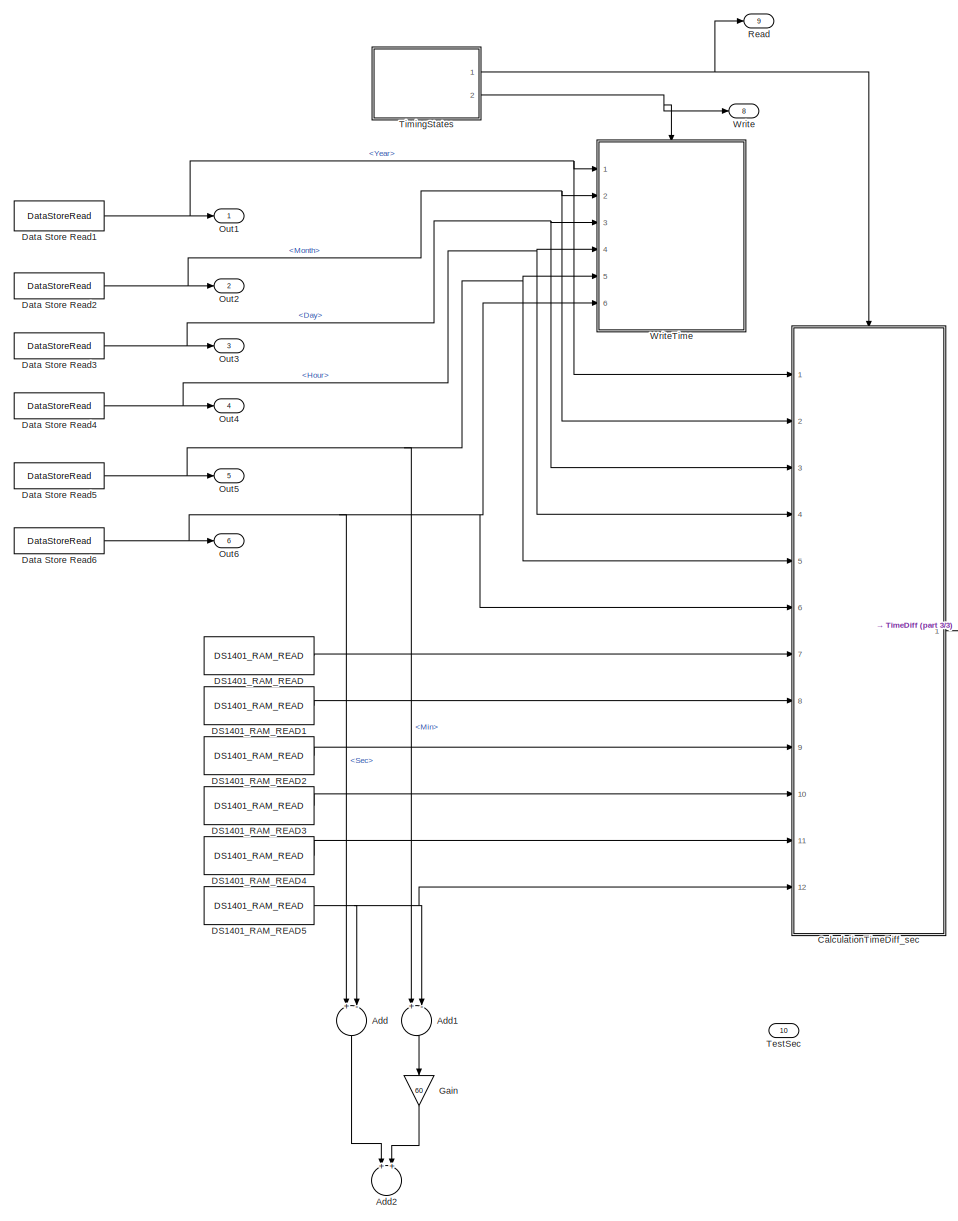
[diagram: root canvas - part 1/3, center side, full height]
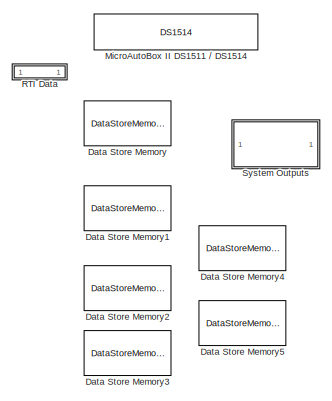
[diagram: root canvas - part 2/3, top left region]
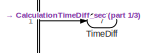
[diagram: root canvas - part 3/3, middle right region]
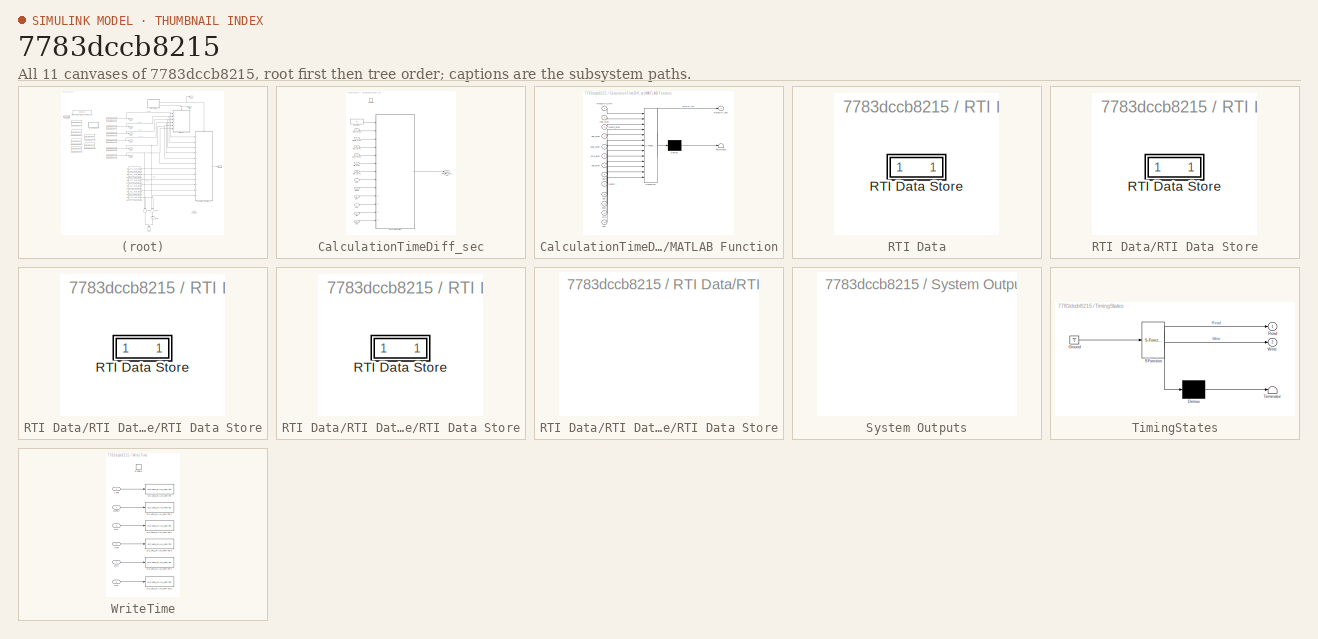
[diagram: thumbnail index - all 11 canvases of the model, root first then tree order]
MODEL slx_7783dccb8215
KIND model
CONFIG AbsTol = auto
CONFIG FixedStep = 0.0001
CONFIG MaxStep = auto
CONFIG MinStep = auto
CONFIG PostLoadFcn = , if any(exist('dsrtsu_mdlpostloadfcn', 'file') == [2, 3, 6]), try dsrtsu_mdlpostloadfcn('Execute', bdroot); catch fprintf('Error in PostLoadFcn (dsrtsu_mdlpostloadfcn) for model "%s":\n %s\n', bdroot, lasterr); end, end, \n
CONFIG RelTol = 1e-3
CONFIG SampleTimeConstraint = Unconstrained
CONFIG Solver = ode1
CONFIG SolverMode = SingleTasking
CONFIG SolverName = ode1
CONFIG StartTime = 0.0
CONFIG StopTime = Inf
BLOCK [Sum] Add
  InputSameDT = off
  Inputs = +-
  OutDataTypeStr = Inherit: Inherit via internal rule
  Ports = [2, 1]
  SaturateOnIntegerOverflow = off
BLOCK [Sum] Add1
  InputSameDT = off
  Inputs = +-
  OutDataTypeStr = Inherit: Inherit via internal rule
  Ports = [2, 1]
  SaturateOnIntegerOverflow = off
BLOCK [Sum] Add2
  InputSameDT = off
  OutDataTypeStr = Inherit: Inherit via internal rule
  Ports = [2, 1]
  SaturateOnIntegerOverflow = off
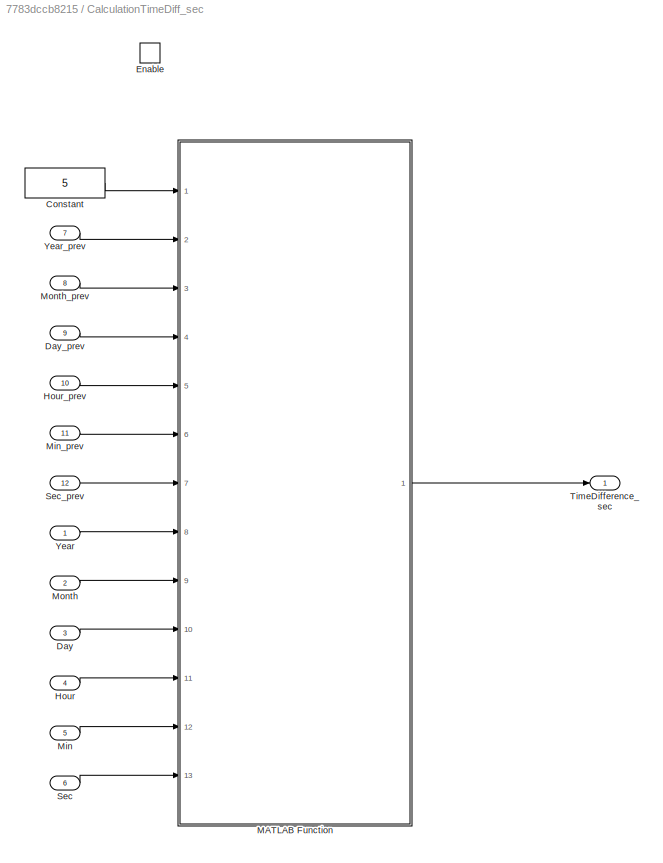
BLOCK [SubSystem] CalculationTimeDiff_sec
  Ports = [12, 1, 1]
  RequestExecContextInheritance = off
  TreatAsAtomicUnit = on
BLOCK [Constant] CalculationTimeDiff_sec/Constant
  OutDataTypeStr = int8
  Value = 5
BLOCK [Inport] CalculationTimeDiff_sec/Day
  IconDisplay = Port number
  Port = 3
BLOCK [Inport] CalculationTimeDiff_sec/Day_prev
  IconDisplay = Port number
  Port = 9
BLOCK [EnablePort] CalculationTimeDiff_sec/Enable
  Ports = []
BLOCK [Inport] CalculationTimeDiff_sec/Hour
  IconDisplay = Port number
  Port = 4
BLOCK [Inport] CalculationTimeDiff_sec/Hour_prev
  IconDisplay = Port number
  Port = 10
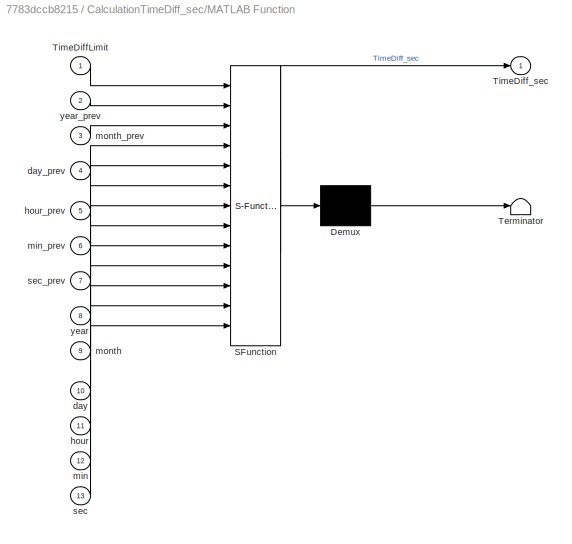
BLOCK [SubSystem] CalculationTimeDiff_sec/MATLAB Function
  ErrorFcn = Stateflow.Translate.translate
  PermitHierarchicalResolution = ExplicitOnly
  Ports = [13, 1]
  RequestExecContextInheritance = off
  SFBlockType = MATLAB Function
  TreatAsAtomicUnit = on
BLOCK [Demux] CalculationTimeDiff_sec/MATLAB Function/ Demux 
  Outputs = 1
  Ports = [1, 1]
BLOCK [S-Function] CalculationTimeDiff_sec/MATLAB Function/ SFunction 
  EnableBusSupport = on
  FunctionName = sf_sfun
  PortCounts = [13 2]
  Ports = [13, 2]
  Tag = Stateflow S-Function Time_example 20
BLOCK [Terminator] CalculationTimeDiff_sec/MATLAB Function/ Terminator 
BLOCK [Inport] CalculationTimeDiff_sec/MATLAB Function/TimeDiffLimit
  IconDisplay = Port number
BLOCK [Outport] CalculationTimeDiff_sec/MATLAB Function/TimeDiff_sec
  IconDisplay = Port number
BLOCK [Inport] CalculationTimeDiff_sec/MATLAB Function/day
  IconDisplay = Port number
  Port = 10
BLOCK [Inport] CalculationTimeDiff_sec/MATLAB Function/day_prev
  IconDisplay = Port number
  Port = 4
BLOCK [Inport] CalculationTimeDiff_sec/MATLAB Function/hour
  IconDisplay = Port number
  Port = 11
BLOCK [Inport] CalculationTimeDiff_sec/MATLAB Function/hour_prev
  IconDisplay = Port number
  Port = 5
BLOCK [Inport] CalculationTimeDiff_sec/MATLAB Function/min
  IconDisplay = Port number
  Port = 12
BLOCK [Inport] CalculationTimeDiff_sec/MATLAB Function/min_prev
  IconDisplay = Port number
  Port = 6
BLOCK [Inport] CalculationTimeDiff_sec/MATLAB Function/month
  IconDisplay = Port number
  Port = 9
BLOCK [Inport] CalculationTimeDiff_sec/MATLAB Function/month_prev
  IconDisplay = Port number
  Port = 3
BLOCK [Inport] CalculationTimeDiff_sec/MATLAB Function/sec
  IconDisplay = Port number
  Port = 13
BLOCK [Inport] CalculationTimeDiff_sec/MATLAB Function/sec_prev
  IconDisplay = Port number
  Port = 7
BLOCK [Inport] CalculationTimeDiff_sec/MATLAB Function/year
  IconDisplay = Port number
  Port = 8
BLOCK [Inport] CalculationTimeDiff_sec/MATLAB Function/year_prev
  IconDisplay = Port number
  Port = 2
BLOCK [Inport] CalculationTimeDiff_sec/Min
  IconDisplay = Port number
  Port = 5
BLOCK [Inport] CalculationTimeDiff_sec/Min_prev
  IconDisplay = Port number
  Port = 11
BLOCK [Inport] CalculationTimeDiff_sec/Month
  IconDisplay = Port number
  Port = 2
BLOCK [Inport] CalculationTimeDiff_sec/Month_prev
  IconDisplay = Port number
  Port = 8
BLOCK [Inport] CalculationTimeDiff_sec/Sec
  IconDisplay = Port number
  Port = 6
BLOCK [Inport] CalculationTimeDiff_sec/Sec_prev
  IconDisplay = Port number
  Port = 12
BLOCK [Outport] CalculationTimeDiff_sec/TimeDifference_sec
  IconDisplay = Port number
BLOCK [Inport] CalculationTimeDiff_sec/Year
  IconDisplay = Port number
BLOCK [Inport] CalculationTimeDiff_sec/Year_prev
  IconDisplay = Port number
  Port = 7
BLOCK [Reference] DS1401_RAM_READ  REF=rti1401lib_I_base/DS1401_RAM_READ
  Address = 0
  DSProperties = struct('RTI',struct('Version',uint32(1),'BlockType',struct('isSLSource',uint8(1),'isSLSink',uint8(0),'isHWSource',uint8(0),'isHWSink',uint8(1),'isSetup',uint8(0),'isInline',uint8(1),'isNonInline',uint8(1),'isInterrupt',uint8(0),'isChannelwise',uint8(0)),'IOBoardType',{{'DS1401','BASE'}},'UnitType','RAM','Identifier','RAMREAD','DialogType','SL','BlockSet','NONE','SlaveProcessor','NONE'))  <repeated x6 — deduplicated; at blocks: DS1401_RAM_READ, DS1401_RAM_READ1, DS1401_RAM_READ2, DS1401_RAM_READ3, DS1401_RAM_READ4, DS1401_RAM_READ5>
  DataType = Int8
  Ports = [0, 1]
  RTIBlockInterface = struct('OutputPortsActive',1,'BlockDisplay',{{['From\nnon-volatile RAM'],'center'}},'IconTransparency','off','InitLevel',1,'BlockName',struct('Token',{{'DS1401_RAM_READ'}}),'MaskDescription',['Provide read access from non-volatile Real-Time-Clock user RAM.'])  <repeated x6 — deduplicated; at blocks: DS1401_RAM_READ, DS1401_RAM_READ1, DS1401_RAM_READ2, DS1401_RAM_READ3, DS1401_RAM_READ4, DS1401_RAM_READ5>
  RTIBlockParaDefault = struct('DataType',8,'Address',0,'SampleTime',-1)
  RTIBlockParameters = struct('DataType',{{1,'ON',[1 8]}},'Address',{{0,'ON','DataType',[0 1 2 3 4 5 6 7 8 9 10 11 12 13 14 15;0 1 2 3 4 5 6 7 8 9 10 11 12 13 14 15;0 0 2 2 4 4 6 6 8 8 10 10 12 12 14 14;0 0 2 2 4 4 6 6 8 8 10 10 12 12 14 14;0 0 0 0 4 4 4 4 8 8 8 8 12 12 12 12;0 0 0 0 4 4 4 4 8 8 8 8 12 12 12 12;0 0 0 0 4 4 4 4 8 8 8 8 12 12 12 12;0 0 0 0 0 0 0 0 8 8 8 8 8 8 8 8]}},'SampleTime',{{-1,'OFF',[]}})
  RTISFcnParameters = struct('DataType','double','Address','double','SampleTime','double')
  Reserved1 = []
  Reserved2 = []
  Reserved3 = []
  Reserved4 = []
  SampleTime = -1
  SourceBlock = rti1401lib_I_base/DS1401_RAM_READ
  SourceType = RTI
BLOCK [Reference] DS1401_RAM_READ1  REF=rti1401lib_I_base/DS1401_RAM_READ
  Address = 1
  DataType = Int8
  Ports = [0, 1]
  RTIBlockParaDefault = struct('DataType',8,'Address',0,'SampleTime',-1)
  RTIBlockParameters = struct('DataType',{{1,'ON',[1 8]}},'Address',{{1,'ON','DataType',[0 1 2 3 4 5 6 7 8 9 10 11 12 13 14 15;0 1 2 3 4 5 6 7 8 9 10 11 12 13 14 15;0 0 2 2 4 4 6 6 8 8 10 10 12 12 14 14;0 0 2 2 4 4 6 6 8 8 10 10 12 12 14 14;0 0 0 0 4 4 4 4 8 8 8 8 12 12 12 12;0 0 0 0 4 4 4 4 8 8 8 8 12 12 12 12;0 0 0 0 4 4 4 4 8 8 8 8 12 12 12 12;0 0 0 0 0 0 0 0 8 8 8 8 8 8 8 8]}},'SampleTime',{{-1,'OFF',[]}})
  RTISFcnParameters = struct('DataType','double','Address','double','SampleTime','double')
  Reserved1 = []
  Reserved2 = []
  Reserved3 = []
  Reserved4 = []
  SampleTime = -1
  SourceBlock = rti1401lib_I_base/DS1401_RAM_READ
  SourceType = RTI
BLOCK [Reference] DS1401_RAM_READ2  REF=rti1401lib_I_base/DS1401_RAM_READ
  Address = 2
  DataType = Int8
  Ports = [0, 1]
  RTIBlockParaDefault = struct('DataType',8,'Address',0,'SampleTime',-1)
  RTIBlockParameters = struct('DataType',{{1,'ON',[1 8]}},'Address',{{2,'ON','DataType',[0 1 2 3 4 5 6 7 8 9 10 11 12 13 14 15;0 1 2 3 4 5 6 7 8 9 10 11 12 13 14 15;0 0 2 2 4 4 6 6 8 8 10 10 12 12 14 14;0 0 2 2 4 4 6 6 8 8 10 10 12 12 14 14;0 0 0 0 4 4 4 4 8 8 8 8 12 12 12 12;0 0 0 0 4 4 4 4 8 8 8 8 12 12 12 12;0 0 0 0 4 4 4 4 8 8 8 8 12 12 12 12;0 0 0 0 0 0 0 0 8 8 8 8 8 8 8 8]}},'SampleTime',{{-1,'OFF',[]}})
  RTISFcnParameters = struct('DataType','double','Address','double','SampleTime','double')
  Reserved1 = []
  Reserved2 = []
  Reserved3 = []
  Reserved4 = []
  SampleTime = -1
  SourceBlock = rti1401lib_I_base/DS1401_RAM_READ
  SourceType = RTI
BLOCK [Reference] DS1401_RAM_READ3  REF=rti1401lib_I_base/DS1401_RAM_READ
  Address = 3
  DataType = Int8
  Ports = [0, 1]
  RTIBlockParaDefault = struct('DataType',8,'Address',0,'SampleTime',-1)
  RTIBlockParameters = struct('DataType',{{1,'ON',[1 8]}},'Address',{{3,'ON','DataType',[0 1 2 3 4 5 6 7 8 9 10 11 12 13 14 15;0 1 2 3 4 5 6 7 8 9 10 11 12 13 14 15;0 0 2 2 4 4 6 6 8 8 10 10 12 12 14 14;0 0 2 2 4 4 6 6 8 8 10 10 12 12 14 14;0 0 0 0 4 4 4 4 8 8 8 8 12 12 12 12;0 0 0 0 4 4 4 4 8 8 8 8 12 12 12 12;0 0 0 0 4 4 4 4 8 8 8 8 12 12 12 12;0 0 0 0 0 0 0 0 8 8 8 8 8 8 8 8]}},'SampleTime',{{-1,'OFF',[]}})
  RTISFcnParameters = struct('DataType','double','Address','double','SampleTime','double')
  Reserved1 = []
  Reserved2 = []
  Reserved3 = []
  Reserved4 = []
  SampleTime = -1
  SourceBlock = rti1401lib_I_base/DS1401_RAM_READ
  SourceType = RTI
BLOCK [Reference] DS1401_RAM_READ4  REF=rti1401lib_I_base/DS1401_RAM_READ
  Address = 4
  DataType = Int8
  Ports = [0, 1]
  RTIBlockParaDefault = struct('DataType',8,'Address',0,'SampleTime',-1)
  RTIBlockParameters = struct('DataType',{{1,'ON',[1 8]}},'Address',{{4,'ON','DataType',[0 1 2 3 4 5 6 7 8 9 10 11 12 13 14 15;0 1 2 3 4 5 6 7 8 9 10 11 12 13 14 15;0 0 2 2 4 4 6 6 8 8 10 10 12 12 14 14;0 0 2 2 4 4 6 6 8 8 10 10 12 12 14 14;0 0 0 0 4 4 4 4 8 8 8 8 12 12 12 12;0 0 0 0 4 4 4 4 8 8 8 8 12 12 12 12;0 0 0 0 4 4 4 4 8 8 8 8 12 12 12 12;0 0 0 0 0 0 0 0 8 8 8 8 8 8 8 8]}},'SampleTime',{{-1,'OFF',[]}})
  RTISFcnParameters = struct('DataType','double','Address','double','SampleTime','double')
  Reserved1 = []
  Reserved2 = []
  Reserved3 = []
  Reserved4 = []
  SampleTime = -1
  SourceBlock = rti1401lib_I_base/DS1401_RAM_READ
  SourceType = RTI
BLOCK [Reference] DS1401_RAM_READ5  REF=rti1401lib_I_base/DS1401_RAM_READ
  Address = 5
  DataType = Int8
  Ports = [0, 1]
  RTIBlockParaDefault = struct('DataType',8,'Address',0,'SampleTime',-1)
  RTIBlockParameters = struct('DataType',{{1,'ON',[1 8]}},'Address',{{5,'ON','DataType',[0 1 2 3 4 5 6 7 8 9 10 11 12 13 14 15;0 1 2 3 4 5 6 7 8 9 10 11 12 13 14 15;0 0 2 2 4 4 6 6 8 8 10 10 12 12 14 14;0 0 2 2 4 4 6 6 8 8 10 10 12 12 14 14;0 0 0 0 4 4 4 4 8 8 8 8 12 12 12 12;0 0 0 0 4 4 4 4 8 8 8 8 12 12 12 12;0 0 0 0 4 4 4 4 8 8 8 8 12 12 12 12;0 0 0 0 0 0 0 0 8 8 8 8 8 8 8 8]}},'SampleTime',{{-1,'OFF',[]}})
  RTISFcnParameters = struct('DataType','double','Address','double','SampleTime','double')
  Reserved1 = []
  Reserved2 = []
  Reserved3 = []
  Reserved4 = []
  SampleTime = -1
  SourceBlock = rti1401lib_I_base/DS1401_RAM_READ
  SourceType = RTI
BLOCK [DataStoreMemory] Data Store Memory
  DataStoreName = my_year
  RTWStateStorageClass = ExportedGlobal
  ReadBeforeWriteMsg = warning
  WriteAfterReadMsg = warning
  WriteAfterWriteMsg = warning
BLOCK [DataStoreMemory] Data Store Memory1
  DataStoreName = my_month
  RTWStateStorageClass = ExportedGlobal
  ReadBeforeWriteMsg = warning
  WriteAfterReadMsg = warning
  WriteAfterWriteMsg = warning
BLOCK [DataStoreMemory] Data Store Memory2
  DataStoreName = my_date
  RTWStateStorageClass = ExportedGlobal
  ReadBeforeWriteMsg = warning
  WriteAfterReadMsg = warning
  WriteAfterWriteMsg = warning
BLOCK [DataStoreMemory] Data Store Memory3
  DataStoreName = my_hour
  RTWStateStorageClass = ExportedGlobal
  ReadBeforeWriteMsg = warning
  WriteAfterReadMsg = warning
  WriteAfterWriteMsg = warning
BLOCK [DataStoreMemory] Data Store Memory4
  DataStoreName = my_min
  RTWStateStorageClass = ExportedGlobal
  ReadBeforeWriteMsg = warning
  WriteAfterReadMsg = warning
  WriteAfterWriteMsg = warning
BLOCK [DataStoreMemory] Data Store Memory5
  DataStoreName = my_sec
  RTWStateStorageClass = ExportedGlobal
  ReadBeforeWriteMsg = warning
  WriteAfterReadMsg = warning
  WriteAfterWriteMsg = warning
BLOCK [DataStoreRead] Data Store Read1
  DataStoreName = my_year
  Ports = [0, 1]
BLOCK [DataStoreRead] Data Store Read2
  DataStoreName = my_month
  Ports = [0, 1]
BLOCK [DataStoreRead] Data Store Read3
  DataStoreName = my_date
  Ports = [0, 1]
BLOCK [DataStoreRead] Data Store Read4
  DataStoreName = my_hour
  Ports = [0, 1]
BLOCK [DataStoreRead] Data Store Read5
  DataStoreName = my_min
  Ports = [0, 1]
BLOCK [DataStoreRead] Data Store Read6
  DataStoreName = my_sec
  Ports = [0, 1]
BLOCK [Gain] Gain
  Gain = 60
  OutDataTypeStr = Inherit: Inherit via internal rule
  ParamDataTypeStr = Inherit: Inherit via internal rule
  SaturateOnIntegerOverflow = off
BLOCK [Reference] MicroAutoBox II DS1511 // DS1514  REF=rtilib1401/MicroAutoBox II DS1511 // DS1514
  FunctionWithSeparateData = off
  GeneratePreprocessorConditionals = off
  Ports = []
  ShowPortLabels = FromPortIcon
  SourceBlock = rtilib1401/MicroAutoBox II DS1511 // DS1514
  SourceType = DSBUTTON
  SystemSampleTime = -1
BLOCK [Outport] Out1
  IconDisplay = Port number
BLOCK [Outport] Out2
  IconDisplay = Port number
  Port = 2
BLOCK [Outport] Out3
  IconDisplay = Port number
  Port = 3
BLOCK [Outport] Out4
  IconDisplay = Port number
  Port = 4
BLOCK [Outport] Out5
  IconDisplay = Port number
  Port = 5
BLOCK [Outport] Out6
  IconDisplay = Port number
  Port = 6
BLOCK [SubSystem] RTI Data
  CopyFcn = if exist('rtidc'), try,  rtidc('DataHostBlockClbCopy', gcbh); catch, disp(['Warning: ''CopyFcn'' for RTI Data block failed: ' lasterr]); end, end,
  DeleteFcn = if exist('rtidc'), try,  rtidc('DataHostBlockClbDelete', gcbh); catch, disp(['Warning: ''DeleteFcn'' for RTI Data block failed: ' lasterr]); end, end,
  LoadFcn = if exist('rtidc'), try,  rtidc('DataHostBlockClbLoad', gcbh); catch, disp(['Warning: ''LoadFcn'' for RTI Data block failed: ' lasterr]); end, end,
  ModelCloseFcn = if exist('rtidc'), try,  rtidc('DataHostBlockClbModelClose', gcbh); catch, disp(['Warning: ''ModelCloseFcn'' for RTI Data block failed: ' lasterr]); end, end,
  NameChangeFcn = if exist('rtidc'), try,  rtidc('DataHostBlockClbNameChange', gcbh); catch, disp(['Warning: ''NameChangeFcn'' for RTI Data block failed: ' lasterr]); end, end,
  Ports = []
  PostSaveFcn = if exist('rtidc'), try,  rtidc('DataHostBlockClbPostSave', gcbh); catch, disp(['Warning: ''PostSaveFcn'' for RTI Data block failed: ' lasterr]); end, end,
  PreSaveFcn = if exist('rtidc'), try,  rtidc('DataHostBlockClbPreSave', gcbh); catch, disp(['Warning: ''PreSaveFcn'' for RTI Data block failed: ' lasterr]); end, end,
  RequestExecContextInheritance = off
  Tag = struct('RTIDataServer',struct('RTIDataServerVs','2','RTIModelDescription','struct(''main'',''Time_example'',''sub'','''',''isMp'',0)'))
BLOCK [SubSystem] RTI Data/RTI Data Store
  Ports = []
  RequestExecContextInheritance = off
  Tag = struct('private',struct('version',struct('dsVer',uint32(2),'dsVerCreation',uint32(2),'RTI',struct('ver','7.5p2','type','RTI1401')),'access',struct('type','Model','isPerm',1,'created',['19-May-2016 14:11:30'],'modified',['20-May-2016 18:16:36'],'location','')),'public',struct('main',struct('data',[]),'sub',struct('name',{{'Time_example'}},'data',{{struct('TH',struct('thTaskInfo',struct('taskType',{...<+895ch>
BLOCK [SubSystem] RTI Data/RTI Data Store/RTI Data Store
  Ports = []
  RequestExecContextInheritance = off
BLOCK [SubSystem] RTI Data/RTI Data Store/RTI Data Store/RTI Data Store
  Ports = []
  RequestExecContextInheritance = off
BLOCK [SubSystem] RTI Data/RTI Data Store/RTI Data Store/RTI Data Store/RTI Data Store
  Ports = []
  RequestExecContextInheritance = off
BLOCK [Outport] Read
  IconDisplay = Port number
  Port = 9
BLOCK [SubSystem] System Outputs
  CopyFcn = cccopyfcn(gcb)
  OpenFcn = ccopenfcn('System Outputs Function')
  Ports = []
  RequestExecContextInheritance = off
BLOCK [Outport] TestSec
  IconDisplay = Port number
  Port = 10
BLOCK [Outport] TimeDiff
  IconDisplay = Port number
  Port = 7
BLOCK [SubSystem] TimingStates
  ErrorFcn = Stateflow.Translate.translate
  PermitHierarchicalResolution = ExplicitOnly
  Ports = [0, 2]
  RequestExecContextInheritance = off
  SFBlockType = Chart
  TreatAsAtomicUnit = on
BLOCK [Demux] TimingStates/ Demux 
  Outputs = 1
  Ports = [1, 1]
BLOCK [Ground] TimingStates/ Ground 
BLOCK [S-Function] TimingStates/ SFunction 
  EnableBusSupport = on
  FunctionName = sf_sfun
  PortCounts = [1 3]
  Ports = [1, 3]
  Tag = Stateflow S-Function Time_example 19
BLOCK [Terminator] TimingStates/ Terminator 
BLOCK [Outport] TimingStates/Read
  IconDisplay = Port number
BLOCK [Outport] TimingStates/Write
  IconDisplay = Port number
  Port = 2
BLOCK [Outport] Write
  IconDisplay = Port number
  Port = 8
BLOCK [SubSystem] WriteTime
  Ports = [6, 0, 1]
  RequestExecContextInheritance = off
  TreatAsAtomicUnit = on
BLOCK [Reference] WriteTime/DS1401_RAM_WRITE  REF=rti1401lib_I_base/DS1401_RAM_WRITE
  Address = 0
  DSProperties = struct('RTI',struct('Version',uint32(1),'BlockType',struct('isSLSource',uint8(0),'isSLSink',uint8(1),'isHWSource',uint8(1),'isHWSink',uint8(1),'isSetup',uint8(0),'isInline',uint8(1),'isNonInline',uint8(1),'isInterrupt',uint8(0),'isChannelwise',uint8(0)),'IOBoardType',{{'DS1401','BASE'}},'UnitType','RAM','Identifier','RAMWRITE','DialogType','SL','BlockSet','NONE','SlaveProcessor','NONE'))  <repeated x6 — deduplicated; at blocks: DS1401_RAM_WRITE, DS1401_RAM_WRITE1, DS1401_RAM_WRITE2, DS1401_RAM_WRITE3, DS1401_RAM_WRITE4, DS1401_RAM_WRITE5>
  DataType = Int8
  Ports = [1]
  RTIBlockInterface = struct('InputPortsActive',1,'BlockDisplay',{{['To\nnon-volatile RAM'],'center'}},'IconTransparency','off','InitLevel',1,'BlockName',struct('Token',{{'DS1401_RAM_WRITE'}}),'MaskDescription',['Provide read access from non-volatile Real-Time-Clock user RAM.'])  <repeated x6 — deduplicated; at blocks: DS1401_RAM_WRITE, DS1401_RAM_WRITE1, DS1401_RAM_WRITE2, DS1401_RAM_WRITE3, DS1401_RAM_WRITE4, DS1401_RAM_WRITE5>
  RTIBlockParaDefault = struct('DataType',8,'Address',0,'SampleTime',-1)
  RTIBlockParameters = struct('DataType',{{1,'ON',[1 8]}},'Address',{{0,'ON','DataType',[0 1 2 3 4 5 6 7 8 9 10 11 12 13 14 15;0 1 2 3 4 5 6 7 8 9 10 11 12 13 14 15;0 0 2 2 4 4 6 6 8 8 10 10 12 12 14 14;0 0 2 2 4 4 6 6 8 8 10 10 12 12 14 14;0 0 0 0 4 4 4 4 8 8 8 8 12 12 12 12;0 0 0 0 4 4 4 4 8 8 8 8 12 12 12 12;0 0 0 0 4 4 4 4 8 8 8 8 12 12 12 12;0 0 0 0 0 0 0 0 8 8 8 8 8 8 8 8]}},'SampleTime',{{1,'OFF',[]}})
  RTISFcnParameters = struct('DataType','double','Address','double','SampleTime','double')
  Reserved1 = []
  Reserved2 = []
  Reserved3 = []
  Reserved4 = []
  SampleTime = 1
  SourceBlock = rti1401lib_I_base/DS1401_RAM_WRITE
  SourceType = RTI
BLOCK [Reference] WriteTime/DS1401_RAM_WRITE1  REF=rti1401lib_I_base/DS1401_RAM_WRITE
  Address = 1
  DataType = Int8
  Ports = [1]
  RTIBlockParaDefault = struct('DataType',8,'Address',0,'SampleTime',-1)
  RTIBlockParameters = struct('DataType',{{1,'ON',[1 8]}},'Address',{{1,'ON','DataType',[0 1 2 3 4 5 6 7 8 9 10 11 12 13 14 15;0 1 2 3 4 5 6 7 8 9 10 11 12 13 14 15;0 0 2 2 4 4 6 6 8 8 10 10 12 12 14 14;0 0 2 2 4 4 6 6 8 8 10 10 12 12 14 14;0 0 0 0 4 4 4 4 8 8 8 8 12 12 12 12;0 0 0 0 4 4 4 4 8 8 8 8 12 12 12 12;0 0 0 0 4 4 4 4 8 8 8 8 12 12 12 12;0 0 0 0 0 0 0 0 8 8 8 8 8 8 8 8]}},'SampleTime',{{1,'OFF',[]}})
  RTISFcnParameters = struct('DataType','double','Address','double','SampleTime','double')
  Reserved1 = []
  Reserved2 = []
  Reserved3 = []
  Reserved4 = []
  SampleTime = 1
  SourceBlock = rti1401lib_I_base/DS1401_RAM_WRITE
  SourceType = RTI
BLOCK [Reference] WriteTime/DS1401_RAM_WRITE2  REF=rti1401lib_I_base/DS1401_RAM_WRITE
  Address = 2
  DataType = Int8
  Ports = [1]
  RTIBlockParaDefault = struct('DataType',8,'Address',0,'SampleTime',-1)
  RTIBlockParameters = struct('DataType',{{1,'ON',[1 8]}},'Address',{{2,'ON','DataType',[0 1 2 3 4 5 6 7 8 9 10 11 12 13 14 15;0 1 2 3 4 5 6 7 8 9 10 11 12 13 14 15;0 0 2 2 4 4 6 6 8 8 10 10 12 12 14 14;0 0 2 2 4 4 6 6 8 8 10 10 12 12 14 14;0 0 0 0 4 4 4 4 8 8 8 8 12 12 12 12;0 0 0 0 4 4 4 4 8 8 8 8 12 12 12 12;0 0 0 0 4 4 4 4 8 8 8 8 12 12 12 12;0 0 0 0 0 0 0 0 8 8 8 8 8 8 8 8]}},'SampleTime',{{1,'OFF',[]}})
  RTISFcnParameters = struct('DataType','double','Address','double','SampleTime','double')
  Reserved1 = []
  Reserved2 = []
  Reserved3 = []
  Reserved4 = []
  SampleTime = 1
  SourceBlock = rti1401lib_I_base/DS1401_RAM_WRITE
  SourceType = RTI
BLOCK [Reference] WriteTime/DS1401_RAM_WRITE3  REF=rti1401lib_I_base/DS1401_RAM_WRITE
  Address = 3
  DataType = Int8
  Ports = [1]
  RTIBlockParaDefault = struct('DataType',8,'Address',0,'SampleTime',-1)
  RTIBlockParameters = struct('DataType',{{1,'ON',[1 8]}},'Address',{{3,'ON','DataType',[0 1 2 3 4 5 6 7 8 9 10 11 12 13 14 15;0 1 2 3 4 5 6 7 8 9 10 11 12 13 14 15;0 0 2 2 4 4 6 6 8 8 10 10 12 12 14 14;0 0 2 2 4 4 6 6 8 8 10 10 12 12 14 14;0 0 0 0 4 4 4 4 8 8 8 8 12 12 12 12;0 0 0 0 4 4 4 4 8 8 8 8 12 12 12 12;0 0 0 0 4 4 4 4 8 8 8 8 12 12 12 12;0 0 0 0 0 0 0 0 8 8 8 8 8 8 8 8]}},'SampleTime',{{1,'OFF',[]}})
  RTISFcnParameters = struct('DataType','double','Address','double','SampleTime','double')
  Reserved1 = []
  Reserved2 = []
  Reserved3 = []
  Reserved4 = []
  SampleTime = 1
  SourceBlock = rti1401lib_I_base/DS1401_RAM_WRITE
  SourceType = RTI
BLOCK [Reference] WriteTime/DS1401_RAM_WRITE4  REF=rti1401lib_I_base/DS1401_RAM_WRITE
  Address = 4
  DataType = Int8
  Ports = [1]
  RTIBlockParaDefault = struct('DataType',8,'Address',0,'SampleTime',-1)
  RTIBlockParameters = struct('DataType',{{1,'ON',[1 8]}},'Address',{{4,'ON','DataType',[0 1 2 3 4 5 6 7 8 9 10 11 12 13 14 15;0 1 2 3 4 5 6 7 8 9 10 11 12 13 14 15;0 0 2 2 4 4 6 6 8 8 10 10 12 12 14 14;0 0 2 2 4 4 6 6 8 8 10 10 12 12 14 14;0 0 0 0 4 4 4 4 8 8 8 8 12 12 12 12;0 0 0 0 4 4 4 4 8 8 8 8 12 12 12 12;0 0 0 0 4 4 4 4 8 8 8 8 12 12 12 12;0 0 0 0 0 0 0 0 8 8 8 8 8 8 8 8]}},'SampleTime',{{1,'OFF',[]}})
  RTISFcnParameters = struct('DataType','double','Address','double','SampleTime','double')
  Reserved1 = []
  Reserved2 = []
  Reserved3 = []
  Reserved4 = []
  SampleTime = 1
  SourceBlock = rti1401lib_I_base/DS1401_RAM_WRITE
  SourceType = RTI
BLOCK [Reference] WriteTime/DS1401_RAM_WRITE5  REF=rti1401lib_I_base/DS1401_RAM_WRITE
  Address = 5
  DataType = Int8
  Ports = [1]
  RTIBlockParaDefault = struct('DataType',8,'Address',0,'SampleTime',-1)
  RTIBlockParameters = struct('DataType',{{1,'ON',[1 8]}},'Address',{{5,'ON','DataType',[0 1 2 3 4 5 6 7 8 9 10 11 12 13 14 15;0 1 2 3 4 5 6 7 8 9 10 11 12 13 14 15;0 0 2 2 4 4 6 6 8 8 10 10 12 12 14 14;0 0 2 2 4 4 6 6 8 8 10 10 12 12 14 14;0 0 0 0 4 4 4 4 8 8 8 8 12 12 12 12;0 0 0 0 4 4 4 4 8 8 8 8 12 12 12 12;0 0 0 0 4 4 4 4 8 8 8 8 12 12 12 12;0 0 0 0 0 0 0 0 8 8 8 8 8 8 8 8]}},'SampleTime',{{1,'OFF',[]}})
  RTISFcnParameters = struct('DataType','double','Address','double','SampleTime','double')
  Reserved1 = []
  Reserved2 = []
  Reserved3 = []
  Reserved4 = []
  SampleTime = 1
  SourceBlock = rti1401lib_I_base/DS1401_RAM_WRITE
  SourceType = RTI
BLOCK [Inport] WriteTime/Day
  IconDisplay = Port number
  Port = 3
BLOCK [EnablePort] WriteTime/Enable
  Ports = []
BLOCK [Inport] WriteTime/Hour
  IconDisplay = Port number
  Port = 4
BLOCK [Inport] WriteTime/Min
  IconDisplay = Port number
  Port = 5
BLOCK [Inport] WriteTime/Month
  IconDisplay = Port number
  Port = 2
BLOCK [Inport] WriteTime/Sec
  IconDisplay = Port number
  Port = 6
BLOCK [Inport] WriteTime/Year
  IconDisplay = Port number
LINE Add1:1 -> Gain:1
LINE Add:1 -> Add2:1
LINE CalculationTimeDiff_sec/Constant:1 -> CalculationTimeDiff_sec/MATLAB Function:1
LINE CalculationTimeDiff_sec/Day:1 -> CalculationTimeDiff_sec/MATLAB Function:10
LINE CalculationTimeDiff_sec/Day_prev:1 -> CalculationTimeDiff_sec/MATLAB Function:4
LINE CalculationTimeDiff_sec/Hour:1 -> CalculationTimeDiff_sec/MATLAB Function:11
LINE CalculationTimeDiff_sec/Hour_prev:1 -> CalculationTimeDiff_sec/MATLAB Function:5
LINE CalculationTimeDiff_sec/MATLAB Function:1 -> CalculationTimeDiff_sec/TimeDifference_sec:1
LINE CalculationTimeDiff_sec/Min:1 -> CalculationTimeDiff_sec/MATLAB Function:12
LINE CalculationTimeDiff_sec/Min_prev:1 -> CalculationTimeDiff_sec/MATLAB Function:6
LINE CalculationTimeDiff_sec/Month:1 -> CalculationTimeDiff_sec/MATLAB Function:9
LINE CalculationTimeDiff_sec/Month_prev:1 -> CalculationTimeDiff_sec/MATLAB Function:3
LINE CalculationTimeDiff_sec/Sec:1 -> CalculationTimeDiff_sec/MATLAB Function:13
LINE CalculationTimeDiff_sec/Sec_prev:1 -> CalculationTimeDiff_sec/MATLAB Function:7
LINE CalculationTimeDiff_sec/Year:1 -> CalculationTimeDiff_sec/MATLAB Function:8
LINE CalculationTimeDiff_sec/Year_prev:1 -> CalculationTimeDiff_sec/MATLAB Function:2
LINE CalculationTimeDiff_sec:1 -> TimeDiff:1
LINE DS1401_RAM_READ1:1 -> CalculationTimeDiff_sec:8
LINE DS1401_RAM_READ2:1 -> CalculationTimeDiff_sec:9
LINE DS1401_RAM_READ3:1 -> CalculationTimeDiff_sec:10
LINE DS1401_RAM_READ4:1 -> CalculationTimeDiff_sec:11
NET DS1401_RAM_READ5:1 -> Add1:2, Add:2, CalculationTimeDiff_sec:12
LINE DS1401_RAM_READ:1 -> CalculationTimeDiff_sec:7
NET Data Store Read1:1 -> CalculationTimeDiff_sec:1, Out1:1, WriteTime:1
NET Data Store Read2:1 -> CalculationTimeDiff_sec:2, Out2:1, WriteTime:2
NET Data Store Read3:1 -> CalculationTimeDiff_sec:3, Out3:1, WriteTime:3
NET Data Store Read4:1 -> CalculationTimeDiff_sec:4, Out4:1, WriteTime:4
NET Data Store Read5:1 -> Add1:1, CalculationTimeDiff_sec:5, Out5:1, WriteTime:5
NET Data Store Read6:1 -> Add:1, CalculationTimeDiff_sec:6, Out6:1, WriteTime:6
LINE Gain:1 -> Add2:2
NET TimingStates:1 -> CalculationTimeDiff_sec:enable, Read:1
NET TimingStates:2 -> Write:1, WriteTime:enable
LINE WriteTime/Day:1 -> WriteTime/DS1401_RAM_WRITE2:1
LINE WriteTime/Hour:1 -> WriteTime/DS1401_RAM_WRITE3:1
LINE WriteTime/Min:1 -> WriteTime/DS1401_RAM_WRITE4:1
LINE WriteTime/Month:1 -> WriteTime/DS1401_RAM_WRITE1:1
LINE WriteTime/Sec:1 -> WriteTime/DS1401_RAM_WRITE5:1
LINE WriteTime/Year:1 -> WriteTime/DS1401_RAM_WRITE:1
note: NET lines group one-source signal fan-out (src -> all destinations, sorted); 1:1 wires keep LINE
CHART TimingStates states=2 transitions=2
  STATE_LABEL 'Initial\nduring:\nRead = true;\nWrite = false;'
  STATE_LABEL 'During\nduring:\nRead = false;\nWrite = true;'
CHART CalculationTimeDiff_sec/MATLAB Function states=1 transitions=1
  STATE_LABEL 'eML_blk_kernel()'
  STATE_LABEL 'SCRIPT:\nfunction TimeDiff_sec = TimeDifferenceCalculator(TimeDiffLimit,year_prev,month_prev,day_prev,hour_prev,min_prev,sec_prev,year,month,day,hour,min,sec)\n\n% Total seconds measurement\nif year_prev == year\n%     t_prev = month_prev*3600*24*30 + day_prev*3600*24 + hour_prev*3600 + min_prev*60 + sec_prev;   \n%     t = month*3600*24*30 + day*3600*24 + hour*3600 + min*60 + sec;\n%     TimeDiff_sec = ...<+168ch>'
